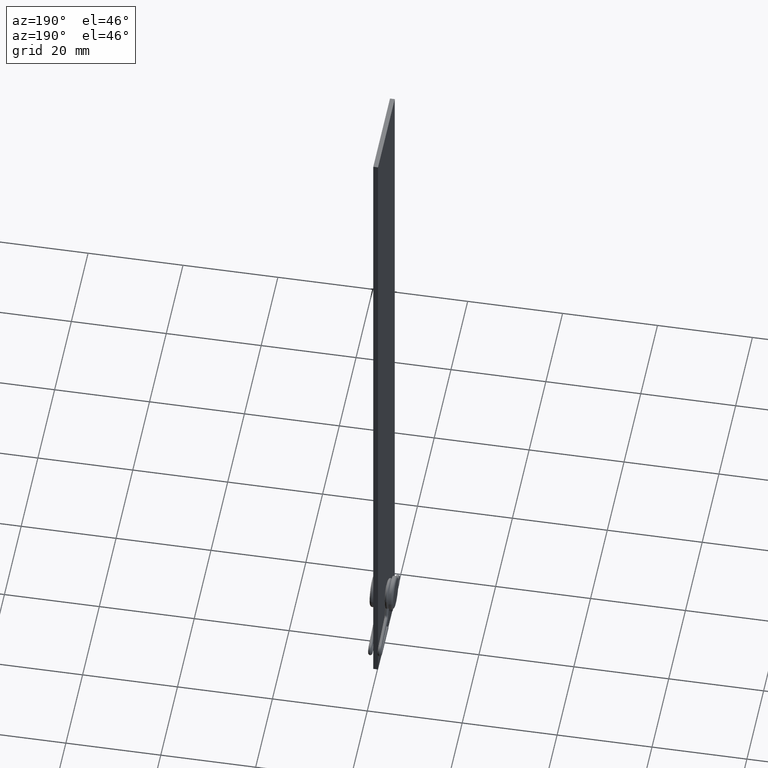
[diagram: clean part render]
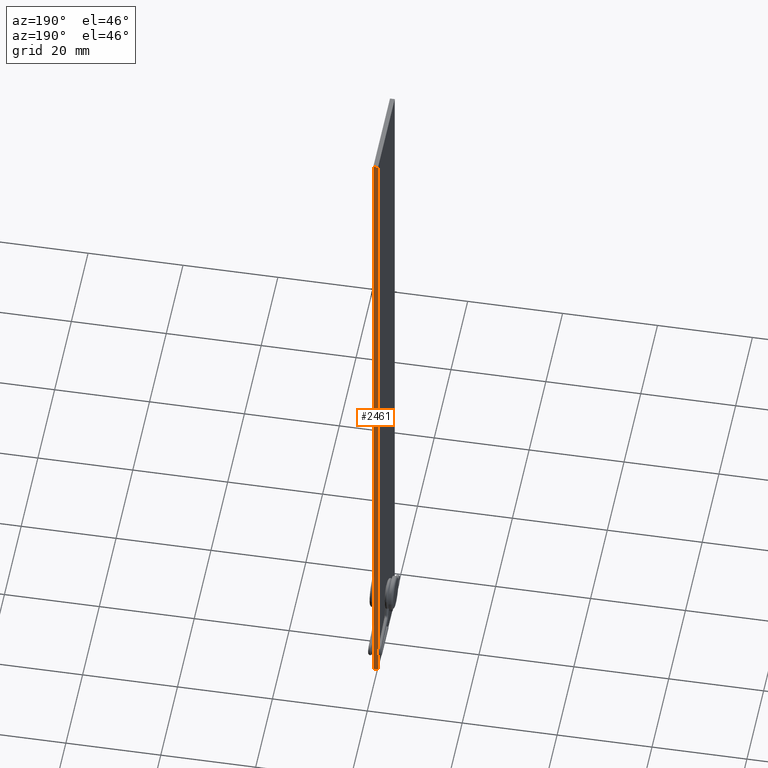
[diagram: same view with one face highlighted and labeled with its STEP entity id]
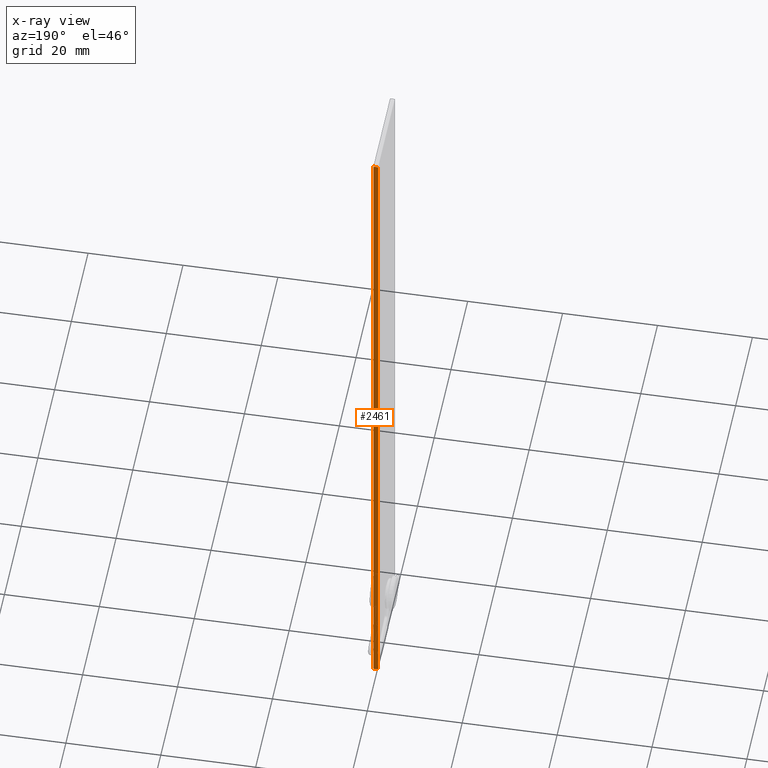
[diagram: x-ray of the same camera — body ghosted, the highlighted face saturated]
A machine part, auxiliary view. The second image highlights one B-rep face of the part: STEP entity #2461.
The next image is the same camera in x-ray: the body ghosted, the highlighted face saturated — about 0% of this face is hidden behind the body in this view.
In plain terms, the highlighted planar face has unit normal (0, 1, 0).
Its self-contained STEP definition (entity closure, byte-faithful):
#53 = VECTOR ( 'NONE', #580, 1000.000000000000000 ) ;
#211 = VECTOR ( 'NONE', #388, 1000.000000000000000 ) ;
#232 = CARTESIAN_POINT ( 'NONE',  ( -0.5000000000000012212, 10.00000000000000000, 150.0000000000000000 ) ) ;
#311 = VERTEX_POINT ( 'NONE', #607 ) ;
#364 = CARTESIAN_POINT ( 'NONE',  ( 0.4999999999999986122, 10.00000000000000000, 150.0000000000000000 ) ) ;
#388 = DIRECTION ( 'NONE',  ( -0.000000000000000000, -0.000000000000000000, -1.000000000000000000 ) ) ;
#480 = FACE_OUTER_BOUND ( 'NONE', #2132, .T. ) ;
#512 = LINE ( 'NONE', #697, #2472 ) ;
#523 = DIRECTION ( 'NONE',  ( 0.000000000000000000, -0.000000000000000000, 1.000000000000000000 ) ) ;
#532 = CARTESIAN_POINT ( 'NONE',  ( -0.5000000000000012212, 10.00000000000000000, 0.000000000000000000 ) ) ;
#538 = DIRECTION ( 'NONE',  ( 0.000000000000000000, 1.000000000000000000, 0.000000000000000000 ) ) ;
#560 = EDGE_CURVE ( 'NONE', #1583, #3128, #1317, .T. ) ;
#580 = DIRECTION ( 'NONE',  ( -0.000000000000000000, -0.000000000000000000, -1.000000000000000000 ) ) ;
#607 = CARTESIAN_POINT ( 'NONE',  ( 0.4999999999999986122, 10.00000000000000000, 150.0000000000000000 ) ) ;
#697 = CARTESIAN_POINT ( 'NONE',  ( -0.5000000000000012212, 10.00000000000000000, 150.0000000000000000 ) ) ;
#699 = VECTOR ( 'NONE', #1232, 1000.000000000000000 ) ;
#949 = LINE ( 'NONE', #2896, #699 ) ;
#967 = AXIS2_PLACEMENT_3D ( 'NONE', #2441, #538, #523 ) ;
#1063 = LINE ( 'NONE', #364, #211 ) ;
#1074 = ORIENTED_EDGE ( 'NONE', *, *, #1466, .F. ) ;
#1232 = DIRECTION ( 'NONE',  ( 1.000000000000000000, 0.000000000000000000, 0.000000000000000000 ) ) ;
#1258 = PLANE ( 'NONE',  #967 ) ;
#1317 = LINE ( 'NONE', #2804, #53 ) ;
#1466 = EDGE_CURVE ( 'NONE', #3128, #1493, #949, .T. ) ;
#1493 = VERTEX_POINT ( 'NONE', #2204 ) ;
#1583 = VERTEX_POINT ( 'NONE', #232 ) ;
#1625 = EDGE_CURVE ( 'NONE', #1583, #311, #512, .T. ) ;
#1681 = DIRECTION ( 'NONE',  ( 1.000000000000000000, 0.000000000000000000, 0.000000000000000000 ) ) ;
#1888 = ORIENTED_EDGE ( 'NONE', *, *, #560, .F. ) ;
#2132 = EDGE_LOOP ( 'NONE', ( #1074, #1888, #3107, #2139 ) ) ;
#2139 = ORIENTED_EDGE ( 'NONE', *, *, #2690, .T. ) ;
#2204 = CARTESIAN_POINT ( 'NONE',  ( 0.4999999999999986122, 10.00000000000000000, 0.000000000000000000 ) ) ;
#2441 = CARTESIAN_POINT ( 'NONE',  ( -0.5000000000000012212, 10.00000000000000000, 150.0000000000000000 ) ) ;
#2461 = ADVANCED_FACE ( 'NONE', ( #480 ), #1258, .T. ) ;
#2472 = VECTOR ( 'NONE', #1681, 1000.000000000000000 ) ;
#2690 = EDGE_CURVE ( 'NONE', #311, #1493, #1063, .T. ) ;
#2804 = CARTESIAN_POINT ( 'NONE',  ( -0.5000000000000012212, 10.00000000000000000, 150.0000000000000000 ) ) ;
#2896 = CARTESIAN_POINT ( 'NONE',  ( -0.5000000000000012212, 10.00000000000000000, 0.000000000000000000 ) ) ;
#3107 = ORIENTED_EDGE ( 'NONE', *, *, #1625, .T. ) ;
#3128 = VERTEX_POINT ( 'NONE', #532 ) ;